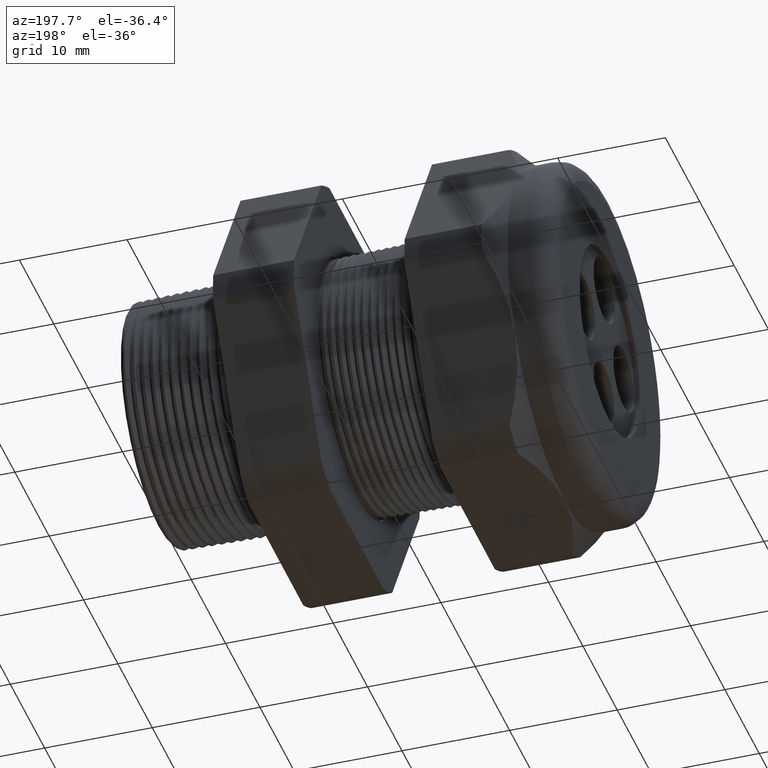
[diagram: clean part render]
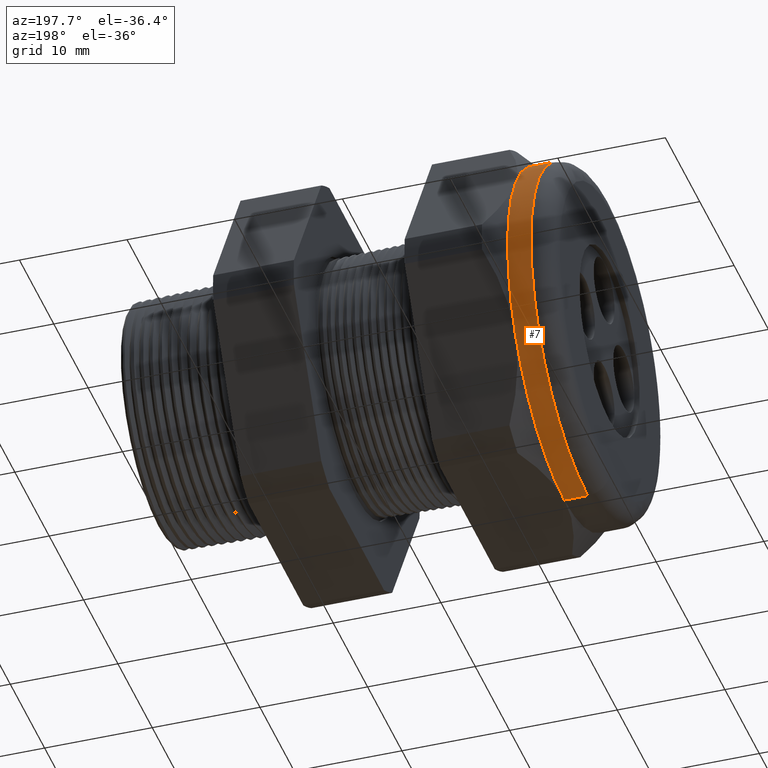
[diagram: same view with one face highlighted and labeled with its STEP entity id]
A machine part, auxiliary view. The second image highlights one B-rep face of the part: STEP entity #7.
In plain terms, the highlighted cylindrical surface (partial cylindrical patch) has radius 16.51 mm, axis along (1, 0, 0).
Its self-contained STEP definition (entity closure, byte-faithful):
#7 = ADVANCED_FACE ( 'NONE', ( #773 ), #772, .T. ) ;
#14 = ORIENTED_EDGE ( 'NONE', *, *, #49, .F. ) ;
#17 = VERTEX_POINT ( 'NONE', #820 ) ;
#21 = EDGE_CURVE ( 'NONE', #5731, #17, #812, .T. ) ;
#31 = EDGE_CURVE ( 'NONE', #5733, #35, #859, .T. ) ;
#32 = ORIENTED_EDGE ( 'NONE', *, *, #31, .F. ) ;
#34 = EDGE_CURVE ( 'NONE', #35, #36, #855, .T. ) ;
#35 = VERTEX_POINT ( 'NONE', #850 ) ;
#36 = VERTEX_POINT ( 'NONE', #849 ) ;
#37 = ORIENTED_EDGE ( 'NONE', *, *, #34, .F. ) ;
#43 = EDGE_CURVE ( 'NONE', #36, #44, #836, .T. ) ;
#44 = VERTEX_POINT ( 'NONE', #831 ) ;
#45 = ORIENTED_EDGE ( 'NONE', *, *, #43, .F. ) ;
#49 = EDGE_CURVE ( 'NONE', #44, #17, #884, .T. ) ;
#769 = DIRECTION ( 'NONE',  ( 0.0000000000000000000, 0.0000000000000000000, -1.000000000000000000 ) ) ;
#770 = DIRECTION ( 'NONE',  ( 1.000000000000000000, 0.0000000000000000000, 0.0000000000000000000 ) ) ;
#771 = AXIS2_PLACEMENT_3D ( 'NONE', #779, #770, #769 ) ;
#772 = CYLINDRICAL_SURFACE ( 'NONE', #771, 0.6499999999999999100 ) ;
#773 = FACE_OUTER_BOUND ( 'NONE', #5802, .T. ) ;
#779 = CARTESIAN_POINT ( 'NONE',  ( 0.0000000000000000000, 0.0000000000000000000, 0.0000000000000000000 ) ) ;
#809 = DIRECTION ( 'NONE',  ( 1.000000000000000000, 0.0000000000000000000, 0.0000000000000000000 ) ) ;
#810 = VECTOR ( 'NONE', #809, 39.37007874015748100 ) ;
#811 = CARTESIAN_POINT ( 'NONE',  ( 0.0000000000000000000, 7.960204194457794200E-017, 0.6499999999999999100 ) ) ;
#812 = LINE ( 'NONE', #811, #810 ) ;
#820 = CARTESIAN_POINT ( 'NONE',  ( -1.364645669291338500, 0.0000000000000000000, 0.6499999999999999100 ) ) ;
#831 = CARTESIAN_POINT ( 'NONE',  ( -1.364645669291338500, 0.5629165124598856100, 0.3250000000000002300 ) ) ;
#832 = DIRECTION ( 'NONE',  ( 0.0000000000000000000, 0.0000000000000000000, -1.000000000000000000 ) ) ;
#833 = DIRECTION ( 'NONE',  ( 1.000000000000000000, 0.0000000000000000000, 0.0000000000000000000 ) ) ;
#834 = CARTESIAN_POINT ( 'NONE',  ( -1.364645669291338200, 0.0000000000000000000, 0.0000000000000000000 ) ) ;
#835 = AXIS2_PLACEMENT_3D ( 'NONE', #834, #833, #832 ) ;
#836 = CIRCLE ( 'NONE', #835, 0.6499999999999999100 ) ;
#849 = CARTESIAN_POINT ( 'NONE',  ( -1.364645669291338500, 0.5629165124598853900, -0.3249999999999999000 ) ) ;
#850 = CARTESIAN_POINT ( 'NONE',  ( -1.364645669291338500, 0.0000000000000000000, -0.6500000000000001300 ) ) ;
#851 = DIRECTION ( 'NONE',  ( 0.0000000000000000000, 0.0000000000000000000, -1.000000000000000000 ) ) ;
#852 = DIRECTION ( 'NONE',  ( 1.000000000000000000, 0.0000000000000000000, 0.0000000000000000000 ) ) ;
#853 = CARTESIAN_POINT ( 'NONE',  ( -1.364645669291338200, 0.0000000000000000000, 0.0000000000000000000 ) ) ;
#854 = AXIS2_PLACEMENT_3D ( 'NONE', #853, #852, #851 ) ;
#855 = CIRCLE ( 'NONE', #854, 0.6499999999999999100 ) ;
#856 = DIRECTION ( 'NONE',  ( 1.000000000000000000, 0.0000000000000000000, 0.0000000000000000000 ) ) ;
#857 = VECTOR ( 'NONE', #856, 39.37007874015748100 ) ;
#858 = CARTESIAN_POINT ( 'NONE',  ( 0.0000000000000000000, 0.0000000000000000000, -0.6499999999999999100 ) ) ;
#859 = LINE ( 'NONE', #858, #857 ) ;
#880 = DIRECTION ( 'NONE',  ( 0.0000000000000000000, 0.0000000000000000000, -1.000000000000000000 ) ) ;
#881 = DIRECTION ( 'NONE',  ( 1.000000000000000000, 0.0000000000000000000, 0.0000000000000000000 ) ) ;
#882 = CARTESIAN_POINT ( 'NONE',  ( -1.364645669291338200, 0.0000000000000000000, 0.0000000000000000000 ) ) ;
#883 = AXIS2_PLACEMENT_3D ( 'NONE', #882, #881, #880 ) ;
#884 = CIRCLE ( 'NONE', #883, 0.6499999999999999100 ) ;
#4286 = CARTESIAN_POINT ( 'NONE',  ( -1.449999999999999700, 0.0000000000000000000, -0.6499999999999999100 ) ) ;
#4287 = CARTESIAN_POINT ( 'NONE',  ( -1.449999999999999700, 7.960204194457794200E-017, 0.6499999999999999100 ) ) ;
#4298 = DIRECTION ( 'NONE',  ( 0.0000000000000000000, 0.0000000000000000000, 1.000000000000000000 ) ) ;
#4299 = DIRECTION ( 'NONE',  ( 1.000000000000000000, 0.0000000000000000000, 0.0000000000000000000 ) ) ;
#4300 = CARTESIAN_POINT ( 'NONE',  ( -1.449999999999999700, 0.0000000000000000000, 0.0000000000000000000 ) ) ;
#4301 = AXIS2_PLACEMENT_3D ( 'NONE', #4300, #4299, #4298 ) ;
#4302 = CIRCLE ( 'NONE', #4301, 0.6499999999999999100 ) ;
#5724 = EDGE_CURVE ( 'NONE', #5733, #5731, #4302, .T. ) ;
#5731 = VERTEX_POINT ( 'NONE', #4287 ) ;
#5733 = VERTEX_POINT ( 'NONE', #4286 ) ;
#5799 = ORIENTED_EDGE ( 'NONE', *, *, #21, .T. ) ;
#5801 = ORIENTED_EDGE ( 'NONE', *, *, #5724, .T. ) ;
#5802 = EDGE_LOOP ( 'NONE', ( #5801, #5799, #14, #45, #37, #32 ) ) ;